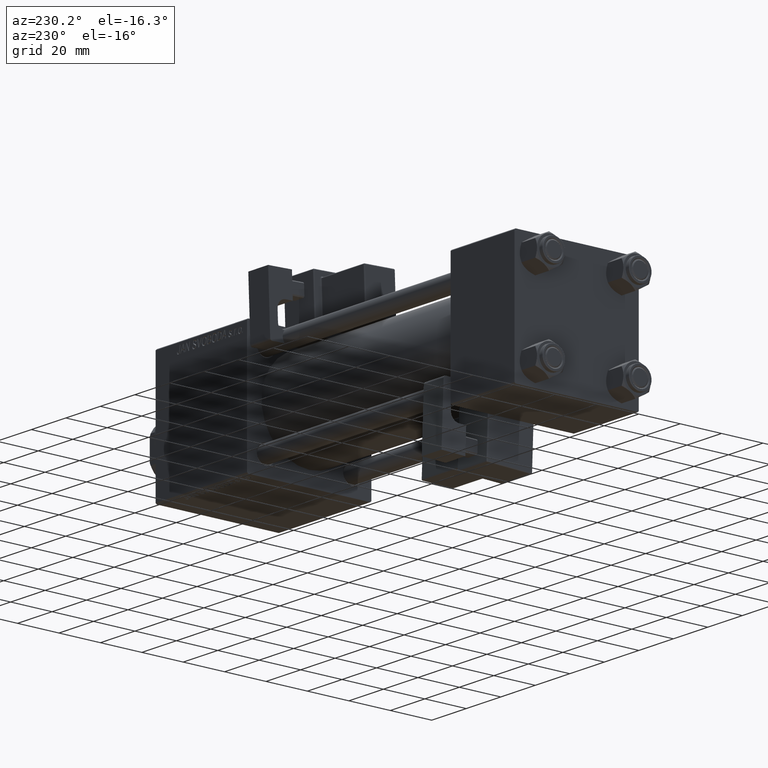
[diagram: clean part render]
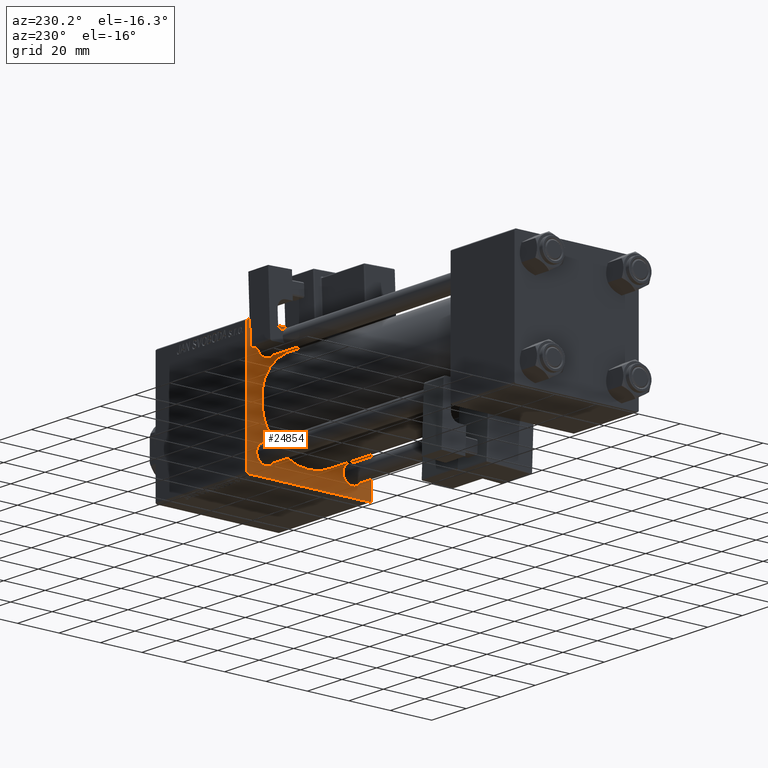
[diagram: same view with one face highlighted and labeled with its STEP entity id]
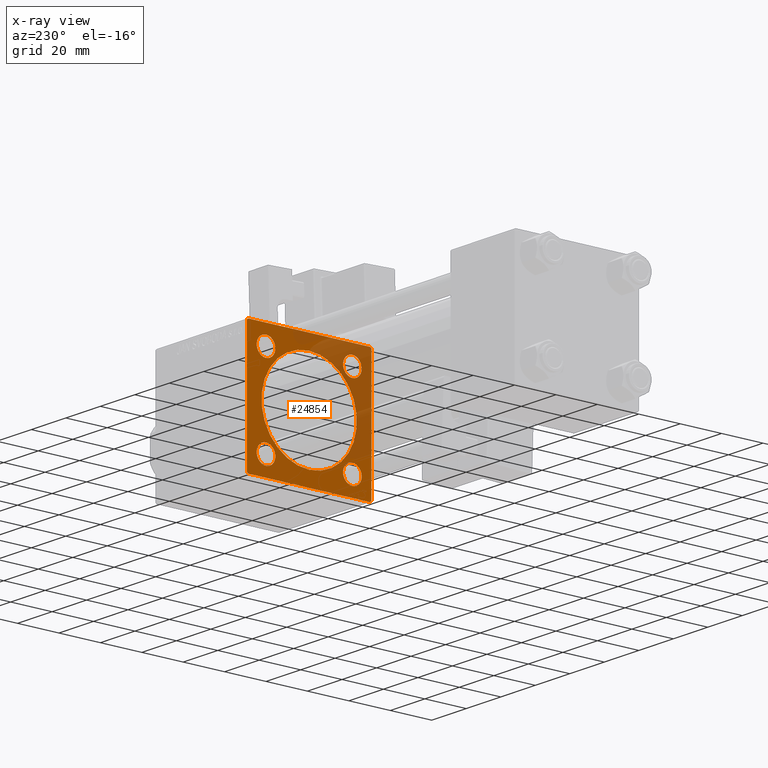
[diagram: x-ray of the same camera — body ghosted, the highlighted face saturated]
A machine part, auxiliary view. The second image highlights one B-rep face of the part: STEP entity #24854.
The next image is the same camera in x-ray: the body ghosted, the highlighted face saturated — about 33% of this face is hidden behind the body in this view.
In plain terms, the highlighted planar face has unit normal (-1, 0, 0).
Its self-contained STEP definition (entity closure, byte-faithful):
#158 = CARTESIAN_POINT ( 'NONE',  ( 155.0000000000000000, 29.75000000000001776, 29.75000000000001776 ) ) ;
#229 = CARTESIAN_POINT ( 'NONE',  ( 155.0000000000000000, -30.00000000000000000, -29.50000000000001066 ) ) ;
#477 = CIRCLE ( 'NONE', #30874, 23.00000000000000000 ) ;
#775 = CARTESIAN_POINT ( 'NONE',  ( 155.0000000000000000, 20.84999999999999787, 20.85000000000000142 ) ) ;
#842 = EDGE_LOOP ( 'NONE', ( #48401, #33202, #42237, #21665, #1545, #50572, #29051, #34411 ) ) ;
#1349 = CARTESIAN_POINT ( 'NONE',  ( 155.0000000000000000, -20.84999999999999076, -20.85000000000000497 ) ) ;
#1545 = ORIENTED_EDGE ( 'NONE', *, *, #8880, .F. ) ;
#1646 = EDGE_CURVE ( 'NONE', #29836, #36820, #4839, .T. ) ;
#1841 = DIRECTION ( 'NONE',  ( -0.000000000000000000, 0.000000000000000000, 1.000000000000000000 ) ) ;
#1869 = EDGE_CURVE ( 'NONE', #48475, #43932, #477, .T. ) ;
#1880 = VERTEX_POINT ( 'NONE', #5044 ) ;
#2383 = VERTEX_POINT ( 'NONE', #37022 ) ;
#2467 = CARTESIAN_POINT ( 'NONE',  ( 155.0000000000000000, 20.84999999999999787, 20.85000000000000142 ) ) ;
#2483 = DIRECTION ( 'NONE',  ( 1.000000000000000000, -0.000000000000000000, 0.000000000000000000 ) ) ;
#2520 = LINE ( 'NONE', #10942, #23598 ) ;
#2601 = CARTESIAN_POINT ( 'NONE',  ( 155.0000000000000000, -20.84999999999999076, 25.35000000000001208 ) ) ;
#2978 = DIRECTION ( 'NONE',  ( 0.000000000000000000, 0.000000000000000000, 1.000000000000000000 ) ) ;
#2985 = EDGE_CURVE ( 'NONE', #1880, #15373, #3369, .T. ) ;
#3171 = DIRECTION ( 'NONE',  ( 0.000000000000000000, -1.000000000000000000, -1.156482317317871478E-16 ) ) ;
#3264 = DIRECTION ( 'NONE',  ( 0.000000000000000000, 0.000000000000000000, -1.000000000000000000 ) ) ;
#3369 = LINE ( 'NONE', #48514, #37877 ) ;
#3802 = VECTOR ( 'NONE', #33886, 1000.000000000000114 ) ;
#4161 = CARTESIAN_POINT ( 'NONE',  ( 155.0000000000000000, 20.84999999999999787, 16.34999999999999432 ) ) ;
#4264 = CIRCLE ( 'NONE', #13834, 4.500000000000007105 ) ;
#4839 = CIRCLE ( 'NONE', #22184, 4.500000000000007105 ) ;
#5044 = CARTESIAN_POINT ( 'NONE',  ( 155.0000000000000000, 29.50000000000000000, -29.99999999999999289 ) ) ;
#5108 = EDGE_LOOP ( 'NONE', ( #49237, #25318 ) ) ;
#5441 = AXIS2_PLACEMENT_3D ( 'NONE', #775, #46751, #42123 ) ;
#5488 = EDGE_LOOP ( 'NONE', ( #18126, #11215 ) ) ;
#6739 = VECTOR ( 'NONE', #11904, 1000.000000000000114 ) ;
#6842 = VERTEX_POINT ( 'NONE', #4161 ) ;
#8341 = CARTESIAN_POINT ( 'NONE',  ( 155.0000000000000000, -20.84999999999999076, 16.34999999999999787 ) ) ;
#8880 = EDGE_CURVE ( 'NONE', #36211, #43625, #52938, .T. ) ;
#9134 = CARTESIAN_POINT ( 'NONE',  ( 155.0000000000000000, -2.602085213965210642E-15, 0.000000000000000000 ) ) ;
#10192 = CARTESIAN_POINT ( 'NONE',  ( 155.0000000000000000, -29.75000000000001066, 29.75000000000001066 ) ) ;
#10688 = DIRECTION ( 'NONE',  ( 0.000000000000000000, 0.000000000000000000, 1.000000000000000000 ) ) ;
#10798 = FACE_BOUND ( 'NONE', #49532, .T. ) ;
#10942 = CARTESIAN_POINT ( 'NONE',  ( 155.0000000000000000, 29.74999999999999645, -29.74999999999999645 ) ) ;
#11215 = ORIENTED_EDGE ( 'NONE', *, *, #28719, .T. ) ;
#11904 = DIRECTION ( 'NONE',  ( 0.000000000000000000, -0.7071067811865474617, 0.7071067811865474617 ) ) ;
#12128 = AXIS2_PLACEMENT_3D ( 'NONE', #36706, #53019, #2978 ) ;
#12578 = ORIENTED_EDGE ( 'NONE', *, *, #44552, .T. ) ;
#12672 = LINE ( 'NONE', #158, #3802 ) ;
#13325 = CARTESIAN_POINT ( 'NONE',  ( 155.0000000000000000, -20.84999999999999076, 20.85000000000000497 ) ) ;
#13834 = AXIS2_PLACEMENT_3D ( 'NONE', #44095, #2483, #19328 ) ;
#14072 = FACE_BOUND ( 'NONE', #37192, .T. ) ;
#15333 = CARTESIAN_POINT ( 'NONE',  ( 155.0000000000000000, 2.146024240737016609E-16, -23.00000000000000000 ) ) ;
#15373 = VERTEX_POINT ( 'NONE', #33020 ) ;
#16240 = CARTESIAN_POINT ( 'NONE',  ( 155.0000000000000000, -29.75000000000001776, -29.75000000000001776 ) ) ;
#16401 = DIRECTION ( 'NONE',  ( 0.000000000000000000, 0.000000000000000000, -1.000000000000000000 ) ) ;
#17336 = CARTESIAN_POINT ( 'NONE',  ( 155.0000000000000000, 20.84999999999999787, -20.85000000000000142 ) ) ;
#17899 = FACE_BOUND ( 'NONE', #26942, .T. ) ;
#18126 = ORIENTED_EDGE ( 'NONE', *, *, #1869, .T. ) ;
#19117 = AXIS2_PLACEMENT_3D ( 'NONE', #1349, #50852, #46782 ) ;
#19242 = ORIENTED_EDGE ( 'NONE', *, *, #1646, .T. ) ;
#19328 = DIRECTION ( 'NONE',  ( 0.000000000000000000, 0.000000000000000000, 1.000000000000000000 ) ) ;
#20045 = LINE ( 'NONE', #16240, #6739 ) ;
#20195 = EDGE_CURVE ( 'NONE', #42226, #40350, #40843, .T. ) ;
#21631 = ORIENTED_EDGE ( 'NONE', *, *, #20195, .T. ) ;
#21665 = ORIENTED_EDGE ( 'NONE', *, *, #51361, .T. ) ;
#21976 = PLANE ( 'NONE',  #28839 ) ;
#22184 = AXIS2_PLACEMENT_3D ( 'NONE', #17336, #46186, #29853 ) ;
#22331 = ORIENTED_EDGE ( 'NONE', *, *, #38009, .T. ) ;
#23233 = EDGE_CURVE ( 'NONE', #38100, #2383, #53030, .T. ) ;
#23598 = VECTOR ( 'NONE', #27527, 1000.000000000000114 ) ;
#24188 = LINE ( 'NONE', #48669, #38895 ) ;
#24352 = CIRCLE ( 'NONE', #31288, 4.500000000000007105 ) ;
#24380 = CARTESIAN_POINT ( 'NONE',  ( 155.0000000000000000, 20.84999999999999787, 25.35000000000000853 ) ) ;
#24463 = CARTESIAN_POINT ( 'NONE',  ( 155.0000000000000000, 30.00000000000000000, 30.00000000000000000 ) ) ;
#24681 = CIRCLE ( 'NONE', #51588, 23.00000000000000000 ) ;
#24854 = ADVANCED_FACE ( 'NONE', ( #10798, #27382, #14072, #17899, #26587, #43981 ), #21976, .T. ) ;
#24951 = VERTEX_POINT ( 'NONE', #24380 ) ;
#25318 = ORIENTED_EDGE ( 'NONE', *, *, #25666, .T. ) ;
#25666 = EDGE_CURVE ( 'NONE', #6842, #24951, #28874, .T. ) ;
#26321 = DIRECTION ( 'NONE',  ( -1.000000000000000000, 0.000000000000000000, -0.000000000000000000 ) ) ;
#26587 = FACE_BOUND ( 'NONE', #5488, .T. ) ;
#26942 = EDGE_LOOP ( 'NONE', ( #21631, #22331 ) ) ;
#27382 = FACE_BOUND ( 'NONE', #5108, .T. ) ;
#27527 = DIRECTION ( 'NONE',  ( -0.000000000000000000, -0.7071067811865474617, -0.7071067811865474617 ) ) ;
#27994 = DIRECTION ( 'NONE',  ( 0.000000000000000000, 0.000000000000000000, -1.000000000000000000 ) ) ;
#28110 = DIRECTION ( 'NONE',  ( 0.000000000000000000, -1.000000000000000000, -1.156482317317871478E-16 ) ) ;
#28719 = EDGE_CURVE ( 'NONE', #43932, #48475, #24681, .T. ) ;
#28839 = AXIS2_PLACEMENT_3D ( 'NONE', #34496, #26321, #1841 ) ;
#28874 = CIRCLE ( 'NONE', #5441, 4.500000000000007105 ) ;
#29051 = ORIENTED_EDGE ( 'NONE', *, *, #23233, .T. ) ;
#29069 = AXIS2_PLACEMENT_3D ( 'NONE', #13325, #34003, #50857 ) ;
#29836 = VERTEX_POINT ( 'NONE', #38878 ) ;
#29853 = DIRECTION ( 'NONE',  ( 0.000000000000000000, 0.000000000000000000, 1.000000000000000000 ) ) ;
#30134 = VECTOR ( 'NONE', #3171, 1000.000000000000000 ) ;
#30828 = DIRECTION ( 'NONE',  ( 1.000000000000000000, -0.000000000000000000, 0.000000000000000000 ) ) ;
#30874 = AXIS2_PLACEMENT_3D ( 'NONE', #9134, #50462, #38503 ) ;
#31288 = AXIS2_PLACEMENT_3D ( 'NONE', #2467, #47617, #35641 ) ;
#31381 = LINE ( 'NONE', #10192, #38339 ) ;
#31419 = EDGE_CURVE ( 'NONE', #40949, #43701, #38637, .T. ) ;
#32057 = EDGE_CURVE ( 'NONE', #36211, #38100, #12672, .T. ) ;
#32378 = VERTEX_POINT ( 'NONE', #45519 ) ;
#32807 = CARTESIAN_POINT ( 'NONE',  ( 155.0000000000000000, 30.00000000000000000, 30.00000000000000000 ) ) ;
#33020 = CARTESIAN_POINT ( 'NONE',  ( 155.0000000000000000, -29.50000000000002487, -30.00000000000000000 ) ) ;
#33202 = ORIENTED_EDGE ( 'NONE', *, *, #40695, .T. ) ;
#33886 = DIRECTION ( 'NONE',  ( 0.000000000000000000, 0.7071067811865474617, -0.7071067811865474617 ) ) ;
#34003 = DIRECTION ( 'NONE',  ( 1.000000000000000000, -0.000000000000000000, 0.000000000000000000 ) ) ;
#34411 = ORIENTED_EDGE ( 'NONE', *, *, #52296, .T. ) ;
#34496 = CARTESIAN_POINT ( 'NONE',  ( 155.0000000000000000, 0.000000000000000000, 0.000000000000000000 ) ) ;
#35641 = DIRECTION ( 'NONE',  ( 0.000000000000000000, 0.000000000000000000, 1.000000000000000000 ) ) ;
#36211 = VERTEX_POINT ( 'NONE', #46342 ) ;
#36658 = VECTOR ( 'NONE', #3264, 1000.000000000000000 ) ;
#36706 = CARTESIAN_POINT ( 'NONE',  ( 155.0000000000000000, -20.84999999999999076, 20.85000000000000497 ) ) ;
#36820 = VERTEX_POINT ( 'NONE', #43132 ) ;
#36827 = CARTESIAN_POINT ( 'NONE',  ( 155.0000000000000000, -2.602085213965210642E-15, 0.000000000000000000 ) ) ;
#37022 = CARTESIAN_POINT ( 'NONE',  ( 155.0000000000000000, 30.00000000000000000, -29.49999999999997868 ) ) ;
#37092 = DIRECTION ( 'NONE',  ( 1.000000000000000000, 0.000000000000000000, 0.000000000000000000 ) ) ;
#37192 = EDGE_LOOP ( 'NONE', ( #42370, #19242 ) ) ;
#37877 = VECTOR ( 'NONE', #28110, 1000.000000000000000 ) ;
#38009 = EDGE_CURVE ( 'NONE', #40350, #42226, #52713, .T. ) ;
#38100 = VERTEX_POINT ( 'NONE', #51130 ) ;
#38339 = VECTOR ( 'NONE', #39821, 1000.000000000000114 ) ;
#38503 = DIRECTION ( 'NONE',  ( 0.000000000000000000, 0.000000000000000000, -1.000000000000000000 ) ) ;
#38637 = CIRCLE ( 'NONE', #29069, 4.500000000000007105 ) ;
#38878 = CARTESIAN_POINT ( 'NONE',  ( 155.0000000000000000, 20.84999999999999787, -25.35000000000000853 ) ) ;
#38895 = VECTOR ( 'NONE', #27994, 1000.000000000000000 ) ;
#38959 = VERTEX_POINT ( 'NONE', #229 ) ;
#39507 = ORIENTED_EDGE ( 'NONE', *, *, #31419, .T. ) ;
#39821 = DIRECTION ( 'NONE',  ( -0.000000000000000000, 0.7071067811865474617, 0.7071067811865474617 ) ) ;
#40135 = EDGE_CURVE ( 'NONE', #32378, #38959, #24188, .T. ) ;
#40350 = VERTEX_POINT ( 'NONE', #52628 ) ;
#40695 = EDGE_CURVE ( 'NONE', #15373, #38959, #20045, .T. ) ;
#40843 = CIRCLE ( 'NONE', #19117, 4.500000000000007105 ) ;
#40949 = VERTEX_POINT ( 'NONE', #2601 ) ;
#42123 = DIRECTION ( 'NONE',  ( 0.000000000000000000, 0.000000000000000000, 1.000000000000000000 ) ) ;
#42226 = VERTEX_POINT ( 'NONE', #43813 ) ;
#42237 = ORIENTED_EDGE ( 'NONE', *, *, #40135, .F. ) ;
#42370 = ORIENTED_EDGE ( 'NONE', *, *, #43364, .T. ) ;
#43132 = CARTESIAN_POINT ( 'NONE',  ( 155.0000000000000000, 20.84999999999999787, -16.34999999999999432 ) ) ;
#43364 = EDGE_CURVE ( 'NONE', #36820, #29836, #4264, .T. ) ;
#43625 = VERTEX_POINT ( 'NONE', #48587 ) ;
#43701 = VERTEX_POINT ( 'NONE', #8341 ) ;
#43813 = CARTESIAN_POINT ( 'NONE',  ( 155.0000000000000000, -20.84999999999999076, -16.34999999999999787 ) ) ;
#43932 = VERTEX_POINT ( 'NONE', #15333 ) ;
#43981 = FACE_OUTER_BOUND ( 'NONE', #842, .T. ) ;
#44095 = CARTESIAN_POINT ( 'NONE',  ( 155.0000000000000000, 20.84999999999999787, -20.85000000000000142 ) ) ;
#44552 = EDGE_CURVE ( 'NONE', #43701, #40949, #45145, .T. ) ;
#45145 = CIRCLE ( 'NONE', #12128, 4.500000000000007105 ) ;
#45519 = CARTESIAN_POINT ( 'NONE',  ( 155.0000000000000000, -30.00000000000000000, 29.50000000000001776 ) ) ;
#46186 = DIRECTION ( 'NONE',  ( 1.000000000000000000, -0.000000000000000000, 0.000000000000000000 ) ) ;
#46342 = CARTESIAN_POINT ( 'NONE',  ( 155.0000000000000000, 29.50000000000002487, 30.00000000000000000 ) ) ;
#46751 = DIRECTION ( 'NONE',  ( 1.000000000000000000, -0.000000000000000000, 0.000000000000000000 ) ) ;
#46782 = DIRECTION ( 'NONE',  ( 0.000000000000000000, 0.000000000000000000, 1.000000000000000000 ) ) ;
#47617 = DIRECTION ( 'NONE',  ( 1.000000000000000000, -0.000000000000000000, 0.000000000000000000 ) ) ;
#47949 = CARTESIAN_POINT ( 'NONE',  ( 155.0000000000000000, -20.84999999999999076, -20.85000000000000497 ) ) ;
#48401 = ORIENTED_EDGE ( 'NONE', *, *, #2985, .T. ) ;
#48475 = VERTEX_POINT ( 'NONE', #53659 ) ;
#48514 = CARTESIAN_POINT ( 'NONE',  ( 155.0000000000000000, 30.00000000000000000, -29.99999999999999289 ) ) ;
#48587 = CARTESIAN_POINT ( 'NONE',  ( 155.0000000000000000, -29.50000000000002487, 29.99999999999999289 ) ) ;
#48669 = CARTESIAN_POINT ( 'NONE',  ( 155.0000000000000000, -30.00000000000000000, 29.99999999999999289 ) ) ;
#49237 = ORIENTED_EDGE ( 'NONE', *, *, #49686, .T. ) ;
#49532 = EDGE_LOOP ( 'NONE', ( #39507, #12578 ) ) ;
#49686 = EDGE_CURVE ( 'NONE', #24951, #6842, #24352, .T. ) ;
#50462 = DIRECTION ( 'NONE',  ( 1.000000000000000000, 0.000000000000000000, 0.000000000000000000 ) ) ;
#50572 = ORIENTED_EDGE ( 'NONE', *, *, #32057, .T. ) ;
#50852 = DIRECTION ( 'NONE',  ( 1.000000000000000000, -0.000000000000000000, 0.000000000000000000 ) ) ;
#50857 = DIRECTION ( 'NONE',  ( 0.000000000000000000, 0.000000000000000000, 1.000000000000000000 ) ) ;
#50959 = AXIS2_PLACEMENT_3D ( 'NONE', #47949, #30828, #10688 ) ;
#51130 = CARTESIAN_POINT ( 'NONE',  ( 155.0000000000000000, 30.00000000000000000, 29.50000000000002487 ) ) ;
#51361 = EDGE_CURVE ( 'NONE', #32378, #43625, #31381, .T. ) ;
#51588 = AXIS2_PLACEMENT_3D ( 'NONE', #36827, #37092, #16401 ) ;
#52296 = EDGE_CURVE ( 'NONE', #2383, #1880, #2520, .T. ) ;
#52628 = CARTESIAN_POINT ( 'NONE',  ( 155.0000000000000000, -20.84999999999999076, -25.35000000000001208 ) ) ;
#52713 = CIRCLE ( 'NONE', #50959, 4.500000000000007105 ) ;
#52938 = LINE ( 'NONE', #32807, #30134 ) ;
#53019 = DIRECTION ( 'NONE',  ( 1.000000000000000000, -0.000000000000000000, 0.000000000000000000 ) ) ;
#53030 = LINE ( 'NONE', #24463, #36658 ) ;
#53659 = CARTESIAN_POINT ( 'NONE',  ( 155.0000000000000000, -2.602085213965210642E-15, 23.00000000000000000 ) ) ;